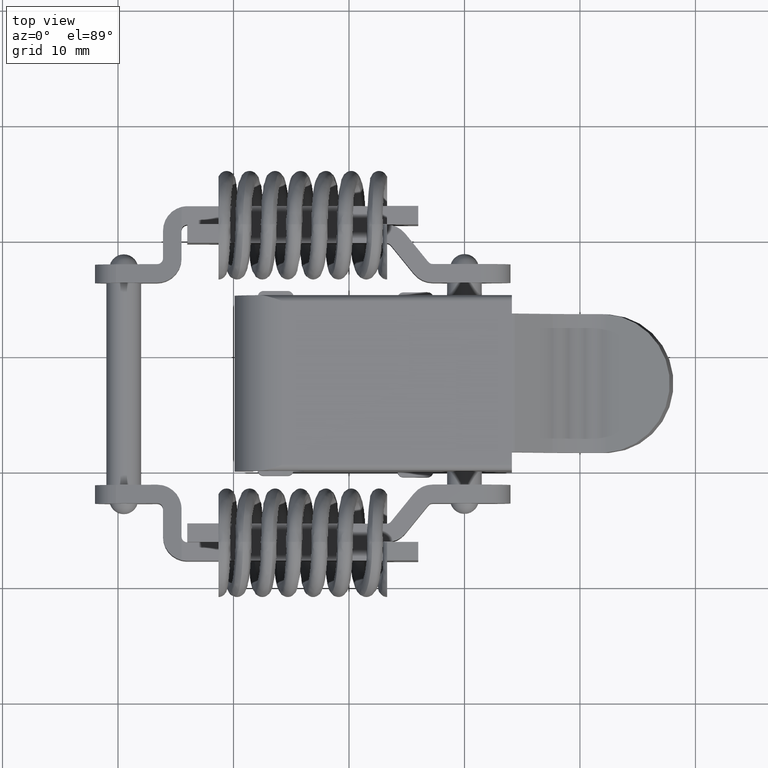
[diagram: clean part render]
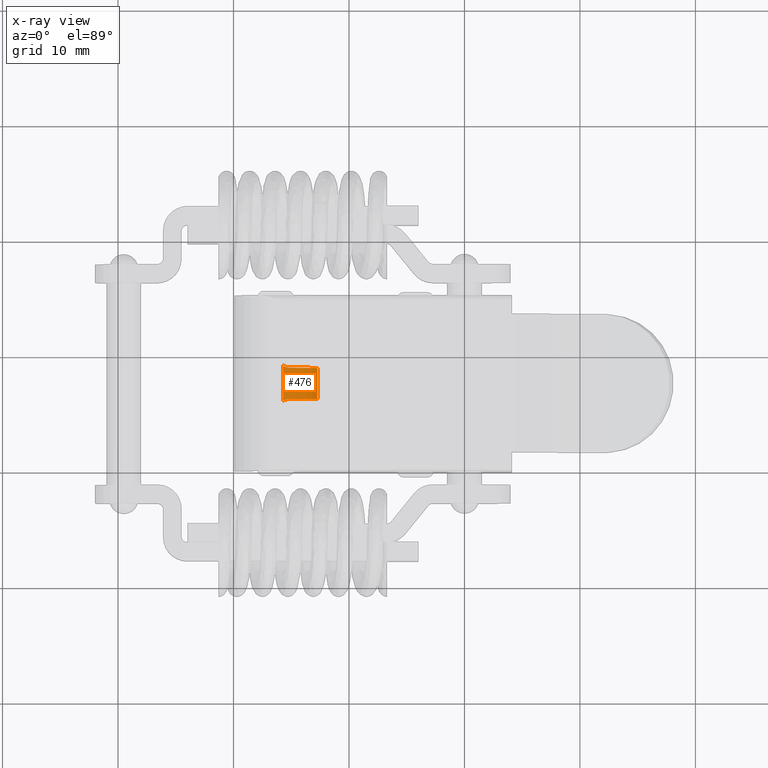
[diagram: x-ray — body ghosted, one internal face saturated and labeled with its STEP entity id]
A machine part, top view, then the same camera in x-ray: the body is ghosted and one INTERNAL B-rep face — a face not visible from any outside direction — is saturated and labeled: STEP entity #476.
In plain terms, the highlighted cylindrical surface (partial cylindrical patch) has radius 3.6 mm, axis along (0, 1, 0).
Its self-contained STEP definition (entity closure, byte-faithful):
#476=ADVANCED_FACE('',(#3010),#3009,.T.);
#3009=CYLINDRICAL_SURFACE('',#8815,3.60000000000E+00);
#3010=FACE_OUTER_BOUND('',#8816,.T.);
#8812=CARTESIAN_POINT('',(-1.57000000000E+01,7.60000014305E+00,-4.00000000000E-01));
#8813=DIRECTION('',(-0.00000000000E+00,1.00000000000E+00,-0.00000000000E+00));
#8814=DIRECTION('',(-3.25456305998E-04,-0.00000000000E+00,9.99999947039E-01));
#8815=AXIS2_PLACEMENT_3D('',#8812,#8813,#8814);
#8816=EDGE_LOOP('',(#10413,#10414,#10415,#10416,#10417,#10418));
#10413=ORIENTED_EDGE('',*,*,#11480,.T.);
#10414=ORIENTED_EDGE('',*,*,#11413,.T.);
#10415=ORIENTED_EDGE('',*,*,#11204,.F.);
#10416=ORIENTED_EDGE('',*,*,#11479,.F.);
#10417=ORIENTED_EDGE('',*,*,#11481,.T.);
#10418=ORIENTED_EDGE('',*,*,#11301,.F.);
#11204=EDGE_CURVE('',#14052,#14037,#14059,.T.);
#11301=EDGE_CURVE('',#14691,#14711,#14712,.T.);
#11413=EDGE_CURVE('',#15439,#14037,#15452,.T.);
#11479=EDGE_CURVE('',#14379,#14052,#15883,.T.);
#11480=EDGE_CURVE('',#14691,#15439,#15889,.T.);
#11481=EDGE_CURVE('',#14379,#14711,#15895,.T.);
#14037=VERTEX_POINT('',#19080);
#14052=VERTEX_POINT('',#19091);
#14059=CIRCLE('',#19099,3.60000000000E+00);
#14379=VERTEX_POINT('',#19323);
#14691=VERTEX_POINT('',#19523);
#14711=VERTEX_POINT('',#19537);
#14712=(BOUNDED_CURVE() B_SPLINE_CURVE(3,(#19538,#19539,#19540,#19541,#19542,#19543),.UNSPECIFIED.,.F.,.F.) B_SPLINE_CURVE_WITH_KNOTS((4,2,4),(0.00000000000E+00,3.38429050786E-04,6.76858101573E-04),.UNSPECIFIED.) CURVE() GEOMETRIC_REPRESENTATION_ITEM() RATIONAL_B_SPLINE_CURVE((1.00000000000E+00,1.00000000000E+00,1.00000000000E+00,1.00000000000E+00,1.00000000000E+00,1.00000000000E+00)) REPRESENTATION_ITEM('') );
#15439=VERTEX_POINT('',#20011);
#15452=(BOUNDED_CURVE() B_SPLINE_CURVE(3,(#20020,#20021,#20022,#20023,#20024,#20025),.UNSPECIFIED.,.F.,.F.) B_SPLINE_CURVE_WITH_KNOTS((4,2,4),(8.67361737988E-19,3.38429050786E-04,6.76858101573E-04),.UNSPECIFIED.) CURVE() GEOMETRIC_REPRESENTATION_ITEM() RATIONAL_B_SPLINE_CURVE((1.00000000000E+00,1.00000000000E+00,1.00000000000E+00,1.00000000000E+00,1.00000000000E+00,1.00000000000E+00)) REPRESENTATION_ITEM('') );
#15883=LINE('',#20282,#20283);
#15889=LINE('',#20285,#20286);
#15895=CIRCLE('',#20291,3.60000000000E+00);
#19080=CARTESIAN_POINT('',(-1.50500000000E+01,6.25000000051E+00,3.14083323527E+00));
#19091=CARTESIAN_POINT('',(-1.27346760024E+01,6.25000000051E+00,1.64128723827E+00));
#19096=CARTESIAN_POINT('',(-1.57000000000E+01,6.25000000051E+00,-4.00000000000E-01));
#19097=DIRECTION('',(0.00000000000E+00,-1.00000000000E+00,0.00000000000E+00));
#19098=DIRECTION('',(-8.23701110449E-01,-0.00000000000E+00,-5.67024232856E-01));
#19099=AXIS2_PLACEMENT_3D('',#19096,#19097,#19098);
#19323=CARTESIAN_POINT('',(-1.27346760024E+01,8.95000000002E+00,1.64128723827E+00));
#19523=CARTESIAN_POINT('',(-1.57000000000E+01,9.11678404340E+00,3.20000000000E+00));
#19537=CARTESIAN_POINT('',(-1.50500000000E+01,8.95000000002E+00,3.14083323527E+00));
#19538=CARTESIAN_POINT('',(-1.57000000000E+01,9.11678404340E+00,3.20000000000E+00));
#19539=CARTESIAN_POINT('',(-1.55997082679E+01,9.06168875372E+00,3.20000000000E+00));
#19540=CARTESIAN_POINT('',(-1.54947418782E+01,9.02036806096E+00,3.19582083764E+00));
#19541=CARTESIAN_POINT('',(-1.52759609213E+01,8.96426241362E+00,3.17662540011E+00));
#19542=CARTESIAN_POINT('',(-1.51625612710E+01,8.95000000002E+00,3.16149640162E+00));
#19543=CARTESIAN_POINT('',(-1.50500000000E+01,8.95000000002E+00,3.14083323527E+00));
#20011=CARTESIAN_POINT('',(-1.57000000000E+01,6.08321595713E+00,3.20000000000E+00));
#20020=CARTESIAN_POINT('',(-1.57000000000E+01,6.08321595713E+00,3.20000000000E+00));
#20021=CARTESIAN_POINT('',(-1.55997082679E+01,6.13831124681E+00,3.20000000000E+00));
#20022=CARTESIAN_POINT('',(-1.54947418782E+01,6.17963193957E+00,3.19582083764E+00));
#20023=CARTESIAN_POINT('',(-1.52759609213E+01,6.23573758691E+00,3.17662540011E+00));
#20024=CARTESIAN_POINT('',(-1.51625612710E+01,6.25000000051E+00,3.16149640162E+00));
#20025=CARTESIAN_POINT('',(-1.50500000000E+01,6.25000000051E+00,3.14083323527E+00));
#20282=CARTESIAN_POINT('',(-1.27346760024E+01,8.95000000002E+00,1.64128723827E+00));
#20283=VECTOR('',#20284,2.69999999951E+00);
#20284=DIRECTION('',(0.00000000000E+00,-1.00000000000E+00,0.00000000000E+00));
#20285=CARTESIAN_POINT('',(-1.57000000000E+01,9.11678404340E+00,3.20000000000E+00));
#20286=VECTOR('',#20287,3.03356808627E+00);
#20287=DIRECTION('',(0.00000000000E+00,-1.00000000000E+00,0.00000000000E+00));
#20288=CARTESIAN_POINT('',(-1.57000000000E+01,8.95000000002E+00,-4.00000000000E-01));
#20289=DIRECTION('',(0.00000000000E+00,-1.00000000000E+00,0.00000000000E+00));
#20290=DIRECTION('',(-8.23701110449E-01,-0.00000000000E+00,-5.67024232856E-01));
#20291=AXIS2_PLACEMENT_3D('',#20288,#20289,#20290);